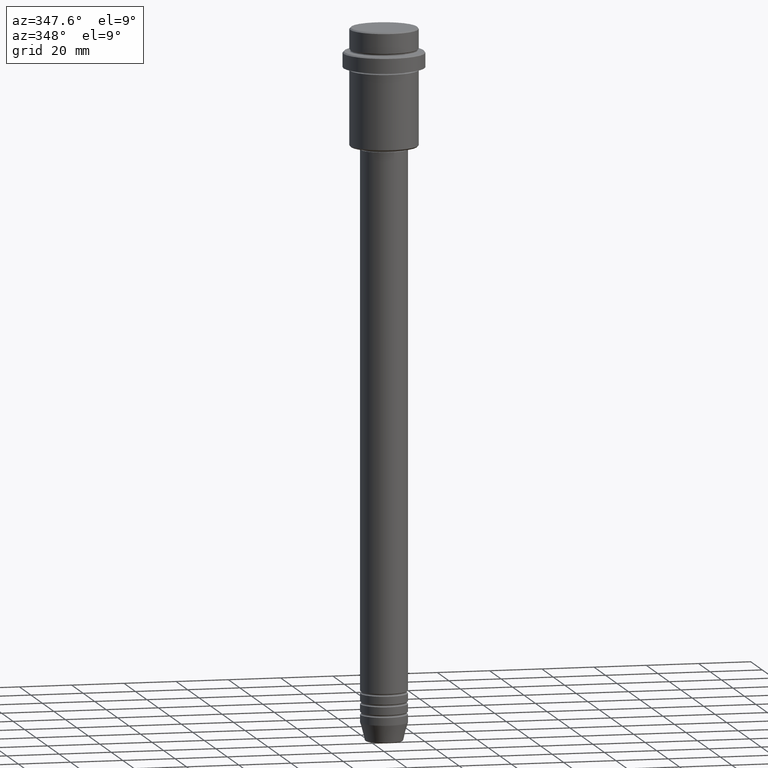
[diagram: clean part render]
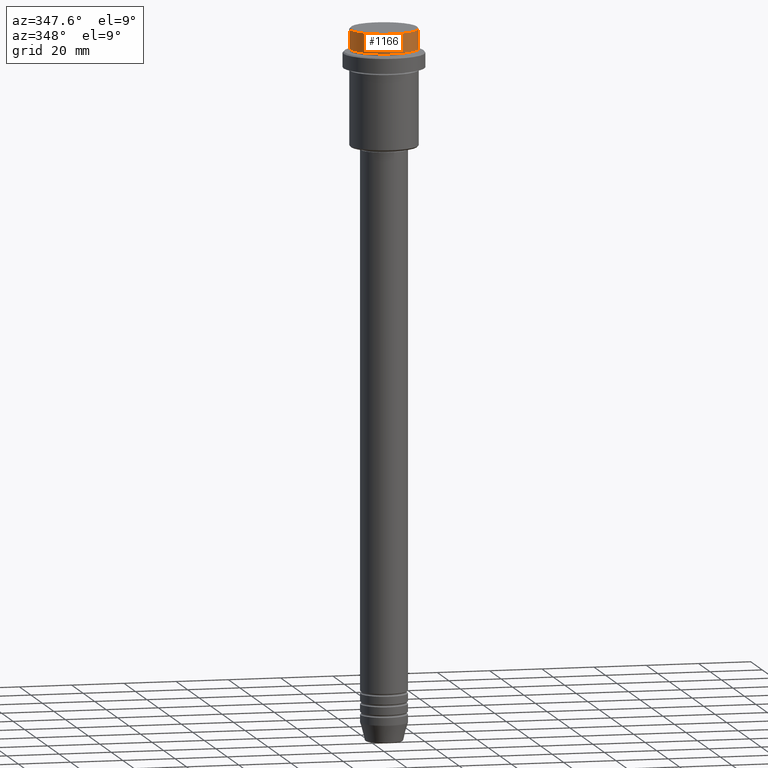
[diagram: same view with one face highlighted and labeled with its STEP entity id]
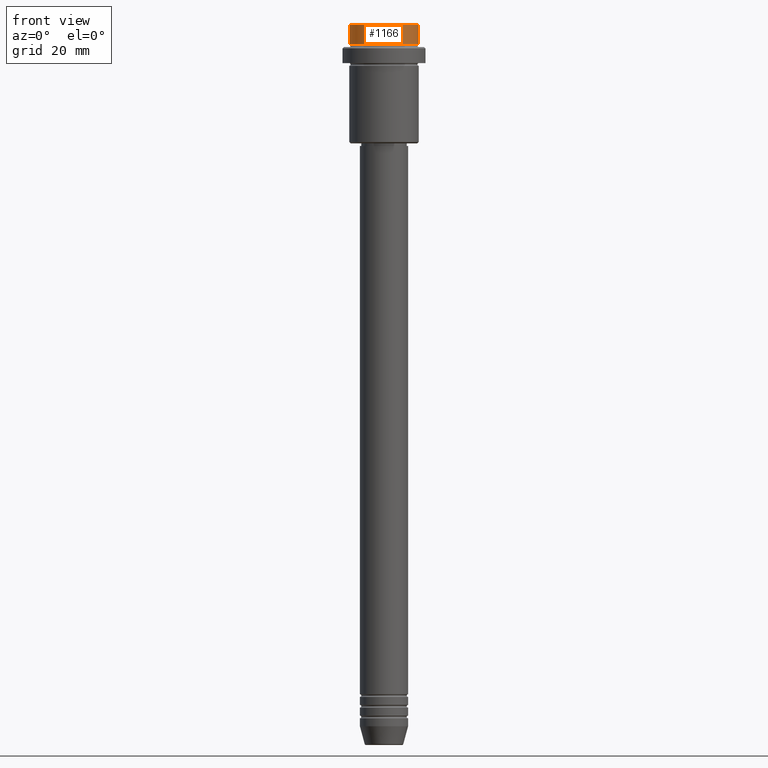
[diagram: same view with one face highlighted and labeled with its STEP entity id]
A machine part, auxiliary view. The second image highlights one B-rep face of the part: STEP entity #1166.
A second angle (front view) of the same face is appended — the face is thin or edge-on in the first view.
In plain terms, the highlighted cylindrical surface (edge-blend (fillet) strip) has radius 13 mm, axis along (-0, -0, 1).
Its self-contained STEP definition (entity closure, byte-faithful):
#11 = DIRECTION ( 'NONE',  ( 0.000000000000000000, 0.000000000000000000, -1.000000000000000000 ) ) ;
#40 = LINE ( 'NONE', #474, #553 ) ;
#41 = ORIENTED_EDGE ( 'NONE', *, *, #204, .T. ) ;
#204 = EDGE_CURVE ( 'NONE', #502, #1332, #532, .T. ) ;
#257 = VERTEX_POINT ( 'NONE', #974 ) ;
#261 = CARTESIAN_POINT ( 'NONE',  ( -12.99999999999999822, 1.592040838891558898E-15, -0.5000000000000037748 ) ) ;
#297 = AXIS2_PLACEMENT_3D ( 'NONE', #542, #11, #528 ) ;
#340 = CARTESIAN_POINT ( 'NONE',  ( 12.99999999999999822, 0.000000000000000000, -7.999999999999998224 ) ) ;
#348 = DIRECTION ( 'NONE',  ( -0.000000000000000000, -0.000000000000000000, 1.000000000000000000 ) ) ;
#390 = LINE ( 'NONE', #1033, #1316 ) ;
#396 = EDGE_CURVE ( 'NONE', #257, #1332, #40, .T. ) ;
#438 = EDGE_CURVE ( 'NONE', #257, #1192, #1012, .T. ) ;
#440 = AXIS2_PLACEMENT_3D ( 'NONE', #675, #348, #683 ) ;
#447 = ORIENTED_EDGE ( 'NONE', *, *, #914, .T. ) ;
#451 = DIRECTION ( 'NONE',  ( -0.000000000000000000, -0.000000000000000000, 1.000000000000000000 ) ) ;
#458 = DIRECTION ( 'NONE',  ( -0.000000000000000000, -0.000000000000000000, 1.000000000000000000 ) ) ;
#474 = CARTESIAN_POINT ( 'NONE',  ( -12.99999999999999822, 1.592040838891558898E-15, 0.000000000000000000 ) ) ;
#487 = ORIENTED_EDGE ( 'NONE', *, *, #396, .F. ) ;
#502 = VERTEX_POINT ( 'NONE', #1381 ) ;
#528 = DIRECTION ( 'NONE',  ( 1.000000000000000000, 0.000000000000000000, 0.000000000000000000 ) ) ;
#532 = CIRCLE ( 'NONE', #297, 12.99999999999999822 ) ;
#542 = CARTESIAN_POINT ( 'NONE',  ( 0.000000000000000000, 0.000000000000000000, -0.5000000000000037748 ) ) ;
#553 = VECTOR ( 'NONE', #458, 1000.000000000000000 ) ;
#675 = CARTESIAN_POINT ( 'NONE',  ( 0.000000000000000000, 0.000000000000000000, 0.000000000000000000 ) ) ;
#683 = DIRECTION ( 'NONE',  ( 1.000000000000000000, 0.000000000000000000, 0.000000000000000000 ) ) ;
#914 = EDGE_CURVE ( 'NONE', #1192, #502, #390, .T. ) ;
#924 = EDGE_LOOP ( 'NONE', ( #487, #1286, #447, #41 ) ) ;
#938 = DIRECTION ( 'NONE',  ( -0.000000000000000000, -0.000000000000000000, 1.000000000000000000 ) ) ;
#974 = CARTESIAN_POINT ( 'NONE',  ( -12.99999999999999822, 1.592040838891558898E-15, -7.999999999999998224 ) ) ;
#1012 = CIRCLE ( 'NONE', #1311, 12.99999999999999822 ) ;
#1028 = CARTESIAN_POINT ( 'NONE',  ( 0.000000000000000000, 0.000000000000000000, -7.999999999999998224 ) ) ;
#1033 = CARTESIAN_POINT ( 'NONE',  ( 12.99999999999999822, 0.000000000000000000, 0.000000000000000000 ) ) ;
#1166 = ADVANCED_FACE ( 'NONE', ( #1338 ), #1330, .T. ) ;
#1192 = VERTEX_POINT ( 'NONE', #340 ) ;
#1286 = ORIENTED_EDGE ( 'NONE', *, *, #438, .T. ) ;
#1311 = AXIS2_PLACEMENT_3D ( 'NONE', #1028, #451, #1331 ) ;
#1316 = VECTOR ( 'NONE', #938, 1000.000000000000000 ) ;
#1330 = CYLINDRICAL_SURFACE ( 'NONE', #440, 12.99999999999999822 ) ;
#1331 = DIRECTION ( 'NONE',  ( 1.000000000000000000, 0.000000000000000000, 0.000000000000000000 ) ) ;
#1332 = VERTEX_POINT ( 'NONE', #261 ) ;
#1338 = FACE_OUTER_BOUND ( 'NONE', #924, .T. ) ;
#1381 = CARTESIAN_POINT ( 'NONE',  ( 12.99999999999999822, 0.000000000000000000, -0.5000000000000037748 ) ) ;